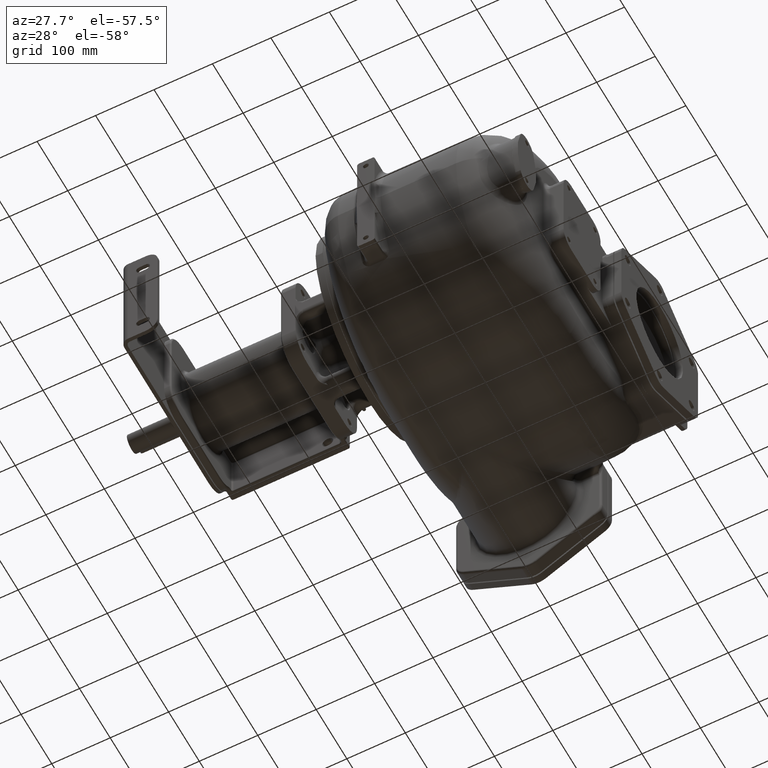
[diagram: clean part render]
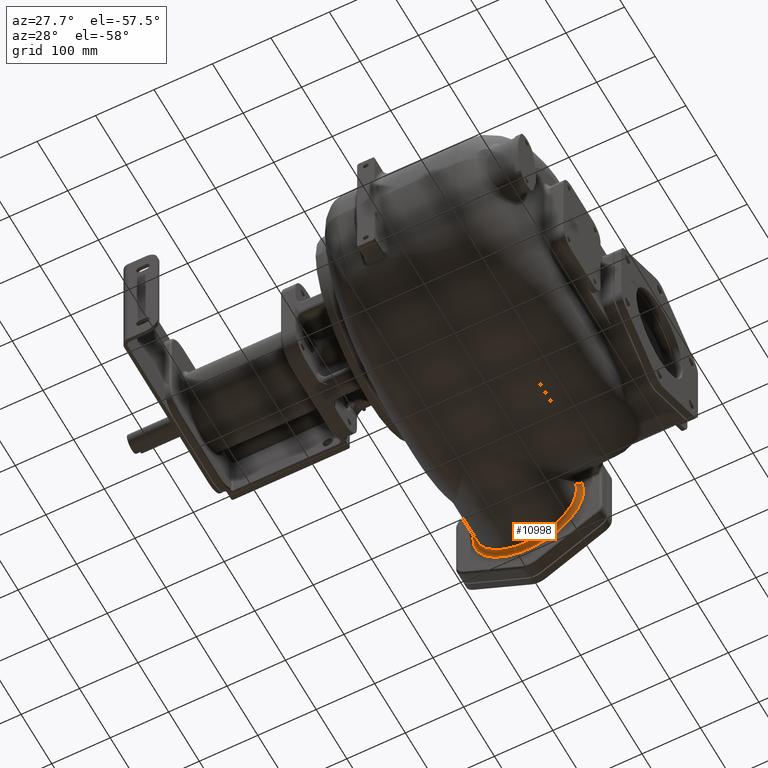
[diagram: same view with one face highlighted and labeled with its STEP entity id]
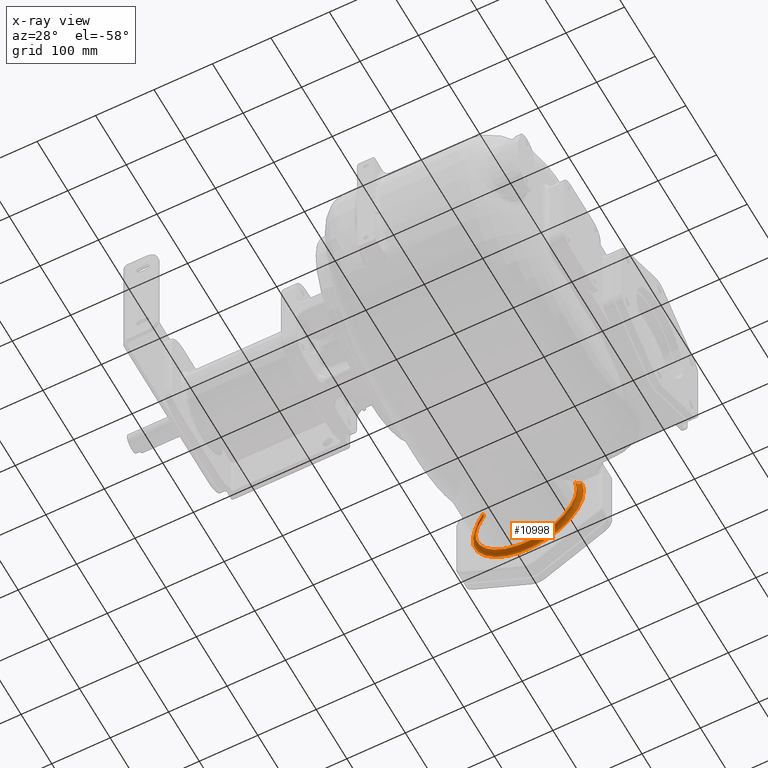
[diagram: x-ray of the same camera — body ghosted, the highlighted face saturated]
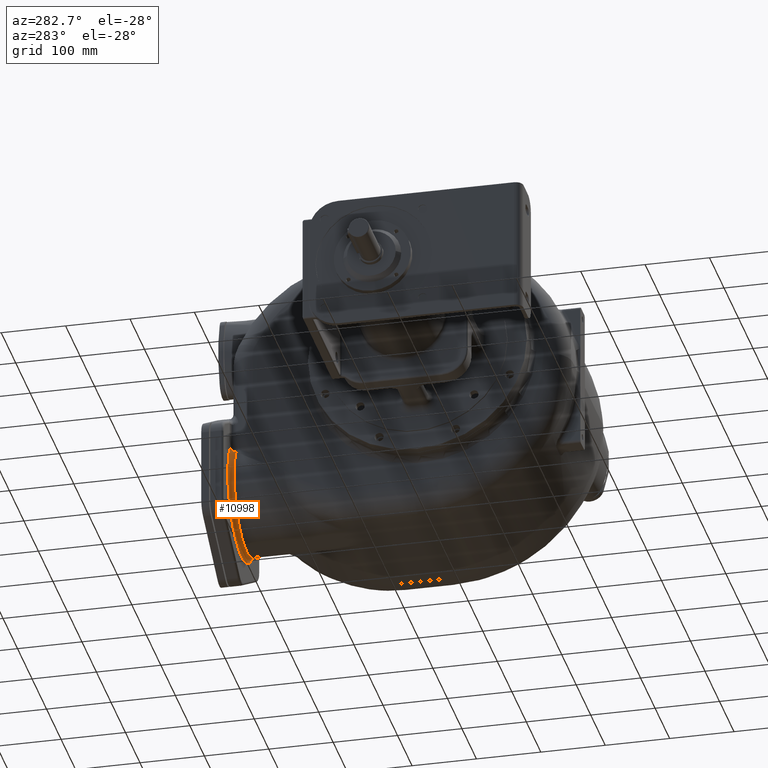
[diagram: same view with one face highlighted and labeled with its STEP entity id]
A machine part, auxiliary view. The second image highlights one B-rep face of the part: STEP entity #10998.
The next image is the same camera in x-ray: the body ghosted, the highlighted face saturated — about 2% of this face is hidden behind the body in this view.
A second angle (auxiliary view) of the same face is appended — the face is thin or edge-on in the first view.
In plain terms, the highlighted toroidal blend (fillet) surface has major radius 95 mm and minor (blend) radius 8 mm.
Its self-contained STEP definition (entity closure, byte-faithful):
#2309=CARTESIAN_POINT('',(0.E0,5.295E2,-1.65E2));
#2310=DIRECTION('',(0.E0,1.E0,0.E0));
#2311=DIRECTION('',(9.639888003113E-1,0.E0,2.659428376069E-1));
#2312=AXIS2_PLACEMENT_3D('',#2309,#2310,#2311);
#2314=CARTESIAN_POINT('',(-7.995825632571E1,5.215E2,-1.137001243145E2));
#2315=DIRECTION('',(5.399986914268E-1,0.E0,8.416658560601E-1));
#2316=DIRECTION('',(8.416658560601E-1,0.E0,-5.399986914268E-1));
#2317=AXIS2_PLACEMENT_3D('',#2314,#2315,#2316);
#2319=CARTESIAN_POINT('',(0.E0,5.215E2,-1.65E2));
#2320=DIRECTION('',(0.E0,-1.E0,0.E0));
#2321=DIRECTION('',(-8.416658560601E-1,0.E0,5.399986914268E-1));
#2322=AXIS2_PLACEMENT_3D('',#2319,#2320,#2321);
#2324=CARTESIAN_POINT('',(9.157875298673E1,5.215E2,-1.397347669436E2));
#2325=DIRECTION('',(-2.659498216467E-1,0.E0,9.639868735445E-1));
#2326=DIRECTION('',(0.E0,1.E0,0.E0));
#2327=AXIS2_PLACEMENT_3D('',#2324,#2325,#2326);
#2333=CARTESIAN_POINT('',(-7.995825636935E1,5.295000040698E2,
-1.137001241928E2));
#8009=VERTEX_POINT('',#2333);
#8011=CARTESIAN_POINT('',(9.157893602957E1,5.295E2,-1.397354304273E2));
#8012=VERTEX_POINT('',#8011);
#8013=CARTESIAN_POINT('',(-7.322492947723E1,5.215E2,-1.180201138459E2));
#8014=CARTESIAN_POINT('',(8.386685724420E1,5.215E2,-1.418623627831E2));
#8015=VERTEX_POINT('',#8013);
#8016=VERTEX_POINT('',#8014);
#10984=CARTESIAN_POINT('',(0.E0,5.215E2,-1.65E2));
#10985=DIRECTION('',(0.E0,-1.E0,0.E0));
#10986=DIRECTION('',(4.719530580147E-3,0.E0,9.999888629535E-1));
#10987=AXIS2_PLACEMENT_3D('',#10984,#10985,#10986);
#10988=TOROIDAL_SURFACE('',#10987,9.5E1,8.E0);
#10990=ORIENTED_EDGE('',*,*,#10989,.T.);
#10992=ORIENTED_EDGE('',*,*,#10991,.F.);
#10993=ORIENTED_EDGE('',*,*,#10970,.T.);
#10995=ORIENTED_EDGE('',*,*,#10994,.F.);
#10996=EDGE_LOOP('',(#10990,#10992,#10993,#10995));
#10997=FACE_OUTER_BOUND('',#10996,.F.);
#10998=ADVANCED_FACE('',(#10997),#10988,.F.);
#2313=CIRCLE('',#2312,9.5E1);
#2318=CIRCLE('',#2317,8.E0);
#2323=CIRCLE('',#2322,8.7E1);
#2328=CIRCLE('',#2327,8.E0);
#10970=EDGE_CURVE('',#8015,#8016,#2323,.T.);
#10989=EDGE_CURVE('',#8012,#8009,#2313,.T.);
#10991=EDGE_CURVE('',#8015,#8009,#2318,.T.);
#10994=EDGE_CURVE('',#8012,#8016,#2328,.T.);